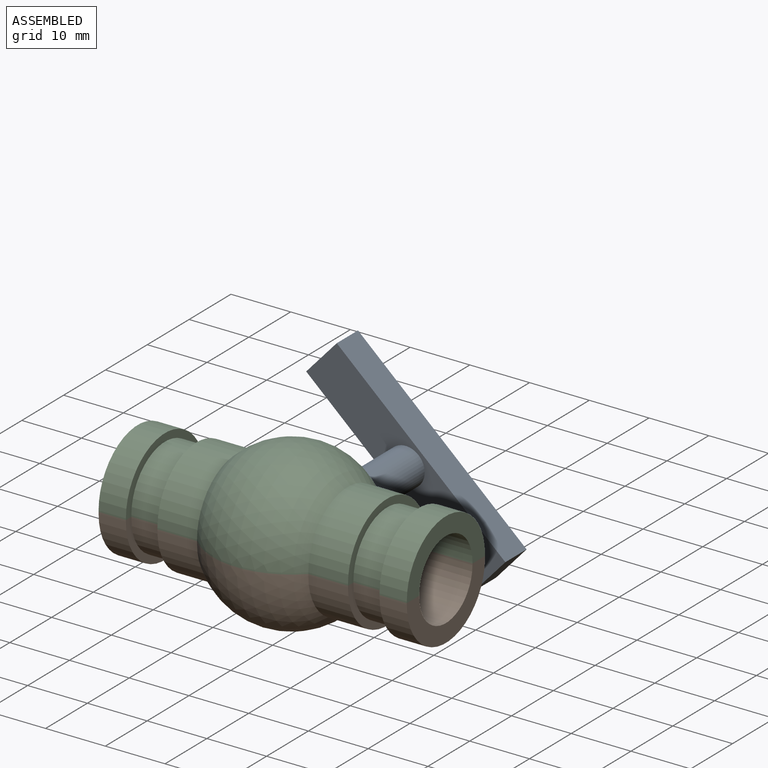
[diagram: assembled view]
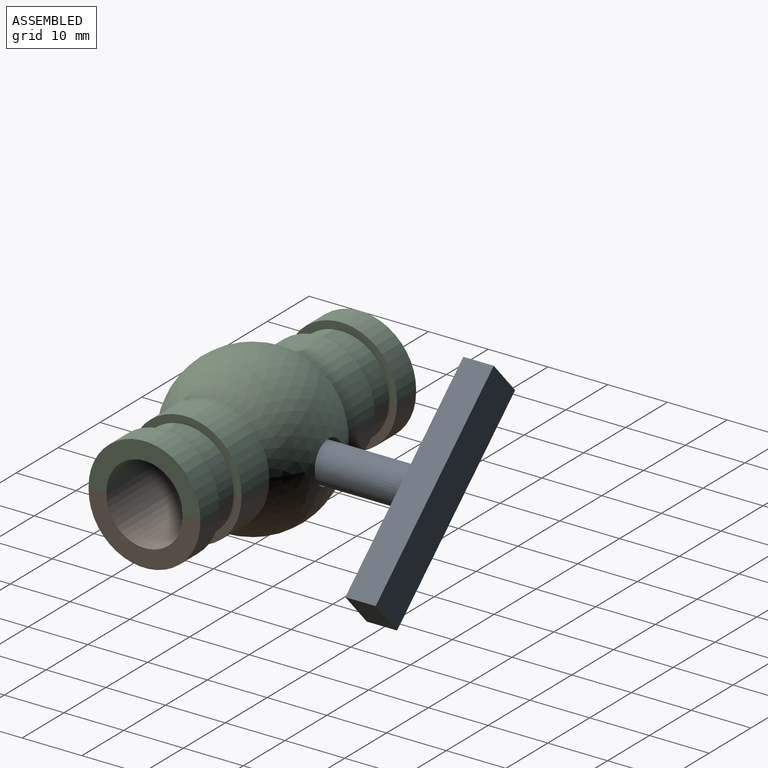
[diagram: assembled view, second angle]
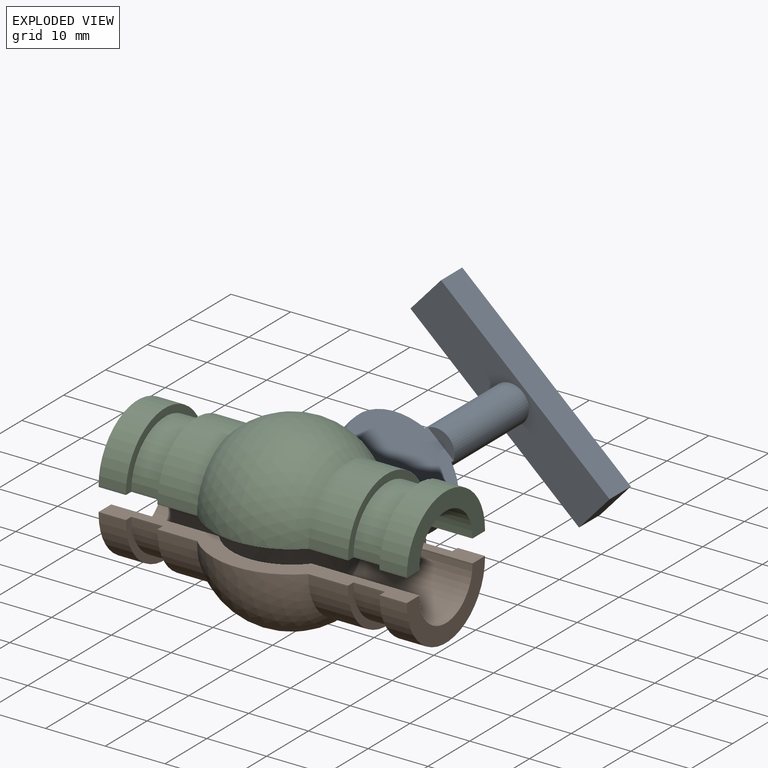
[diagram: exploded view]
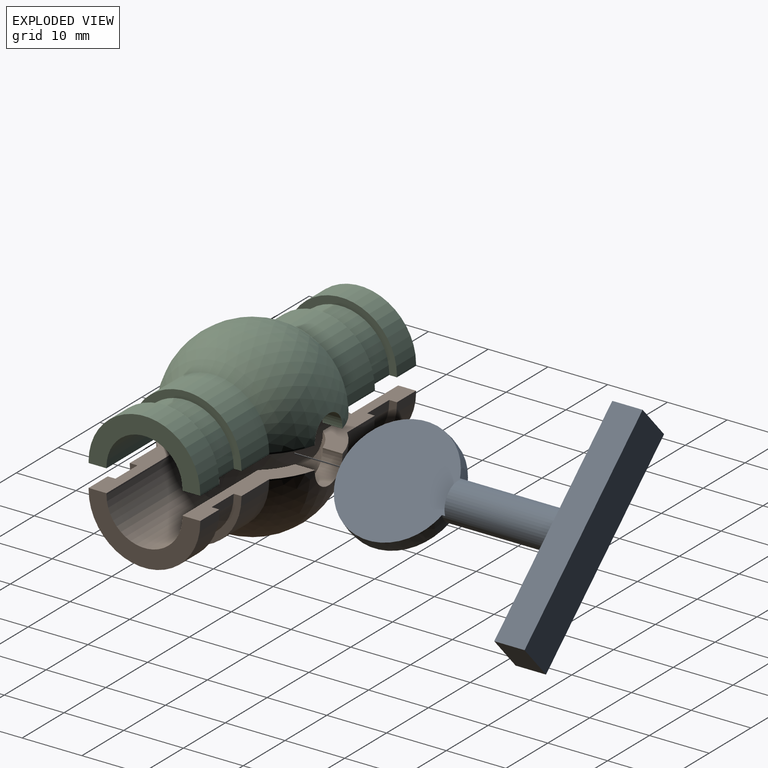
[diagram: exploded view, second angle]
ASSEMBLY  parts=3 mates=3
PART A: 12 faces, bbox 38.1x19.1x41.9 mm
  f0: sphere r=9.53mm, area 136.1mm2, adj f1,f3,f5
  f1: cylinder r=3.17mm len=18.32mm, axis (0,0,-1), area 357.5mm2, adj f0,f2,f3,f4,f5,f11
  f2: plane 5.82x1.91mm, normal (0,0,-1), area 8mm2, adj f1,f3
  f3: plane 18.97x18.88mm, normal (0,-1,0), area 281.3mm2, adj f0,f1,f2
  f4: plane 5.82x1.91mm, normal (0,0,-1), area 8mm2, adj f1,f5
  f5: plane 18.97x18.88mm, normal (0,1,0), area 281.3mm2, adj f0,f1,f4
  f6: plane 38.1x5.08mm, normal (0,1,0), area 193.5mm2, adj f7,f9,f10,f11
  f7: plane 7.62x5.08mm, normal (-1,0,0), area 38.7mm2, adj f6,f8,f10,f11
  f8: plane 38.1x5.08mm, normal (0,-1,0), area 193.5mm2, adj f7,f9,f10,f11
  f9: plane 7.62x5.08mm, normal (1,0,0), area 38.7mm2, adj f6,f8,f10,f11
  f10: plane 38.1x7.62mm, normal (0,0,1), area 290.3mm2, adj f6,f7,f8,f9
  f11: plane 38.1x7.62mm, normal (0,0,-1), area 258.7mm2, adj f1,f6,f7,f8,f9
PART B: 42 faces, bbox 51.6x26.4x13.5 mm
  f0: cylinder r=10.02mm len=4.47mm, axis (0,0,-1), area 1.4mm2, adj f2,f7,f20,f41
  f1: cylinder r=13.2mm len=6.03mm, axis (0,0,-1), area 1.8mm2, adj f15,f25,f29,f41
  f2: plane 22.51x6.43mm, normal (0,0,1), area 64.8mm2, adj f0,f3,f5,f17,f19,f20,f26,f27
  f3: plane 18.7x9.6mm, normal (1,0,0), area 36.1mm2, adj f2,f4,f18,f19,f28,f30,f39,f40
  f4: cylinder r=9.35mm len=18.7mm, axis (1,0,0), area 134.3mm2, adj f3,f5,f19,f39
  f5: plane 18.7x9.6mm, normal (-1,0,0), area 75.5mm2, adj f2,f4,f6,f19,f20,f38,f39,f40
  f6: cylinder r=6.35mm len=18.04mm, axis (1,0,0), area 359.9mm2, adj f5,f7,f20,f38
  f7: sphere r=10.02mm, area 471mm2, adj f0,f6,f8,f21,f37,f41
  f8: cylinder r=6.35mm len=18.04mm, axis (1,0,0), area 359.9mm2, adj f7,f9,f22,f36
  f9: plane 18.7x9.6mm, normal (1,0,0), area 75.5mm2, adj f8,f10,f22,f23,f29,f35,f36,f40
  f10: cylinder r=9.35mm len=18.7mm, axis (1,0,0), area 134.3mm2, adj f9,f11,f23,f35
  f11: plane 18.7x9.6mm, normal (-1,0,0), area 36.1mm2, adj f10,f12,f23,f24,f29,f34,f35,f40
  f12: cylinder r=8.05mm len=16.11mm, axis (1,0,0), area 133.5mm2, adj f11,f13,f24,f34
  f13: plane 18.7x9.6mm, normal (1,0,0), area 36.1mm2, adj f12,f14,f24,f25,f29,f33,f34,f40
  f14: cylinder r=9.35mm len=18.7mm, axis (1,0,0), area 194.9mm2, adj f13,f15,f25,f33
  f15: sphere r=13.2mm, area 755.4mm2, adj f1,f14,f16,f26,f32,f41
  f16: cylinder r=9.35mm len=18.7mm, axis (1,0,0), area 194.9mm2, adj f15,f17,f27,f31
  f17: plane 18.7x9.6mm, normal (-1,0,0), area 36.1mm2, adj f2,f16,f18,f27,f28,f30,f31,f40
  f18: cylinder r=8.05mm len=16.11mm, axis (1,0,0), area 133.5mm2, adj f3,f17,f28,f30
  f19: plane 4.57x0.25mm, normal (0,1,0), area 1.1mm2, adj f2,f3,f4,f5
  f20: plane 18.04x0.25mm, normal (0,-1,0), area 4.5mm2, adj f0,f2,f5,f6
  f21: cylinder r=10.02mm len=4.47mm, axis (0,0,-1), area 1.4mm2, adj f7,f22,f29,f41
  f22: plane 18.04x0.25mm, normal (0,-1,0), area 4.5mm2, adj f8,f9,f21,f29
  f23: plane 4.57x0.25mm, normal (0,1,0), area 1.1mm2, adj f9,f10,f11,f29
  f24: plane 5.28x0.25mm, normal (0,1,0), area 1.3mm2, adj f11,f12,f13,f29
  f25: plane 6.64x0.25mm, normal (0,1,0), area 1.7mm2, adj f1,f13,f14,f29
  f26: cylinder r=13.2mm len=6.03mm, axis (0,0,-1), area 1.8mm2, adj f2,f15,f27,f41
  f27: plane 6.64x0.25mm, normal (0,1,0), area 1.7mm2, adj f2,f16,f17,f26
  f28: plane 5.28x0.25mm, normal (0,1,0), area 1.3mm2, adj f2,f3,f17,f18
  f29: plane 22.51x6.43mm, normal (0,0,1), area 64.8mm2, adj f1,f9,f11,f13,f21,f22,f23,f24
  f30: plane 5.28x0.25mm, normal (0,-1,0), area 1.3mm2, adj f3,f17,f18,f40
  f31: plane 6.64x0.25mm, normal (0,-1,0), area 1.7mm2, adj f16,f17,f32,f40
  f32: cylinder r=13.2mm len=18.64mm, axis (0,0,-1), area 5.2mm2, adj f15,f31,f33,f40
  f33: plane 6.64x0.25mm, normal (0,-1,0), area 1.7mm2, adj f13,f14,f32,f40
  f34: plane 5.28x0.25mm, normal (0,-1,0), area 1.3mm2, adj f11,f12,f13,f40
  f35: plane 4.57x0.25mm, normal (0,-1,0), area 1.1mm2, adj f9,f10,f11,f40
  f36: plane 18.04x0.25mm, normal (0,1,0), area 4.5mm2, adj f8,f9,f37,f40
  f37: cylinder r=10.02mm len=15.52mm, axis (0,0,-1), area 4.4mm2, adj f7,f36,f38,f40
  f38: plane 18.04x0.25mm, normal (0,1,0), area 4.5mm2, adj f5,f6,f37,f40
  f39: plane 4.57x0.25mm, normal (0,-1,0), area 1.1mm2, adj f3,f4,f5,f40
  f40: plane 51.6x6.85mm, normal (0,0,1), area 150.9mm2, adj f3,f5,f9,f11,f13,f17,f30,f31
  f41: cylinder r=3.3mm len=6.6mm, axis (0,-1,0), area 36mm2, adj f0,f1,f2,f7,f15,f21,f26,f29
PART C: same geometry as B
PLACE A rot(axis=(-0.26,-0.68,-0.68),150.5deg) t=(12.38,10.66,0.88)mm
PLACE B t=(12.38,1.19,0.88)mm fixed
PLACE C rot(axis=(0,1,0),180deg) t=(12.38,1.19,1.38)mm
MATE planar B.f41 <-> A.f2  axis (0,-1,0) through (12.38,10.66,0.88)mm
MATE fastened C.f40 <-> B.f40  axis (0,0,-1) through (25.02,-8.16,1.13)mm
MATE cylindrical B.f41 <-> A.f1  axis (0,-1,0) through (12.38,14,0.88)mm
